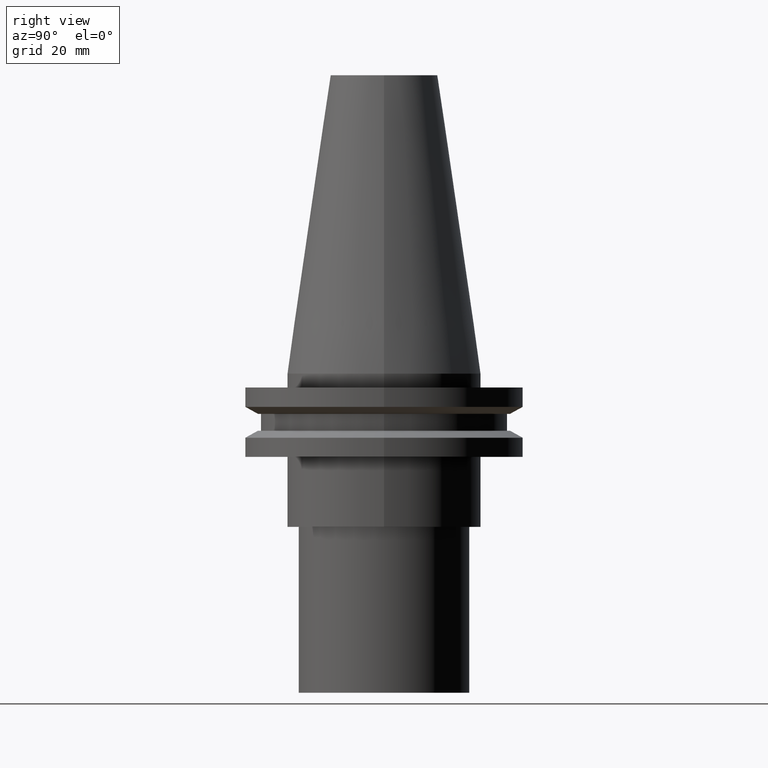
[diagram: clean part render]
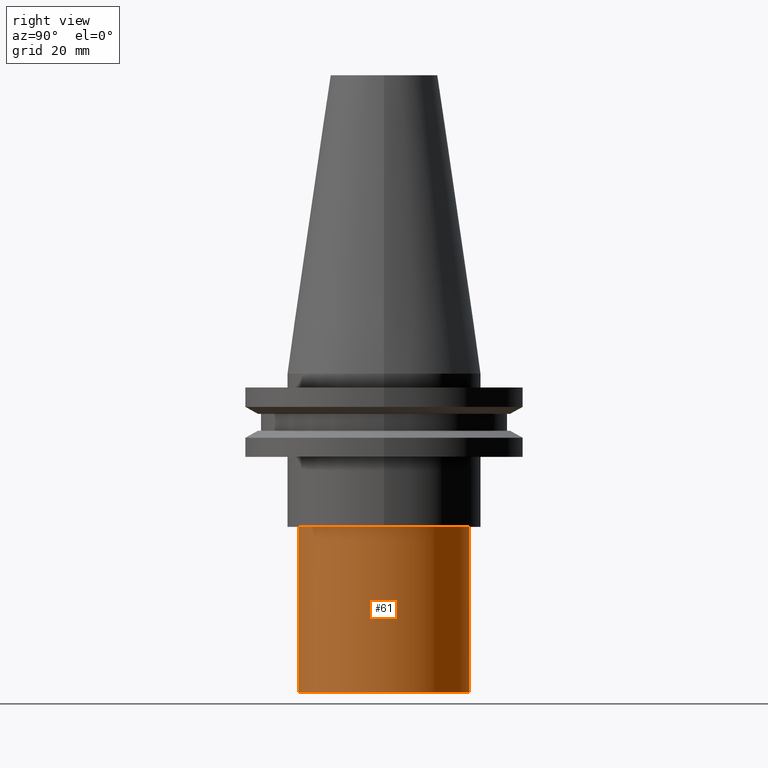
[diagram: same view with one face highlighted and labeled with its STEP entity id]
A machine part, right view. The second image highlights one B-rep face of the part: STEP entity #61.
In plain terms, the highlighted cylindrical surface (bore or boss wall) has radius 19.5 mm, axis along (-0, 0, -1).
Its self-contained STEP definition (entity closure, byte-faithful):
#17 = CYLINDRICAL_SURFACE ( 'NONE', #240, 19.50000000000000000 ) ;
#31 = CIRCLE ( 'NONE', #307, 19.50000000000000000 ) ;
#51 = EDGE_LOOP ( 'NONE', ( #291 ) ) ;
#60 = DIRECTION ( 'NONE',  ( 0.000000000000000000, 1.000000000000000000, 0.000000000000000000 ) ) ;
#61 = ADVANCED_FACE ( 'NONE', ( #208, #324 ), #17, .T. ) ;
#65 = VERTEX_POINT ( 'NONE', #390 ) ;
#74 = AXIS2_PLACEMENT_3D ( 'NONE', #99, #276, #60 ) ;
#84 = ORIENTED_EDGE ( 'NONE', *, *, #190, .F. ) ;
#95 = CARTESIAN_POINT ( 'NONE',  ( 0.000000000000000000, 19.50000000000000000, -35.04999999999999716 ) ) ;
#99 = CARTESIAN_POINT ( 'NONE',  ( 0.000000000000000000, 1.224646799147352862E-15, -73.00000000000000000 ) ) ;
#106 = EDGE_CURVE ( 'NONE', #219, #219, #31, .T. ) ;
#123 = DIRECTION ( 'NONE',  ( 0.000000000000000000, 1.000000000000000000, 0.000000000000000000 ) ) ;
#125 = DIRECTION ( 'NONE',  ( -0.000000000000000000, 3.227000788267069691E-17, -1.000000000000000000 ) ) ;
#152 = CARTESIAN_POINT ( 'NONE',  ( 0.000000000000000000, 1.224646799147352862E-15, -73.00000000000000000 ) ) ;
#190 = EDGE_CURVE ( 'NONE', #65, #65, #360, .T. ) ;
#208 = FACE_OUTER_BOUND ( 'NONE', #51, .T. ) ;
#219 = VERTEX_POINT ( 'NONE', #95 ) ;
#240 = AXIS2_PLACEMENT_3D ( 'NONE', #152, #326, #271 ) ;
#271 = DIRECTION ( 'NONE',  ( 0.000000000000000000, 1.000000000000000000, 0.000000000000000000 ) ) ;
#276 = DIRECTION ( 'NONE',  ( -0.000000000000000000, 3.227000788267069691E-17, -1.000000000000000000 ) ) ;
#291 = ORIENTED_EDGE ( 'NONE', *, *, #106, .T. ) ;
#302 = CARTESIAN_POINT ( 'NONE',  ( 0.000000000000000000, 0.000000000000000000, -35.04999999999999716 ) ) ;
#307 = AXIS2_PLACEMENT_3D ( 'NONE', #302, #125, #123 ) ;
#324 = FACE_OUTER_BOUND ( 'NONE', #369, .T. ) ;
#326 = DIRECTION ( 'NONE',  ( -0.000000000000000000, 3.227000788267069691E-17, -1.000000000000000000 ) ) ;
#360 = CIRCLE ( 'NONE', #74, 19.50000000000000000 ) ;
#369 = EDGE_LOOP ( 'NONE', ( #84 ) ) ;
#390 = CARTESIAN_POINT ( 'NONE',  ( 0.000000000000000000, 19.50000000000000000, -73.00000000000000000 ) ) ;